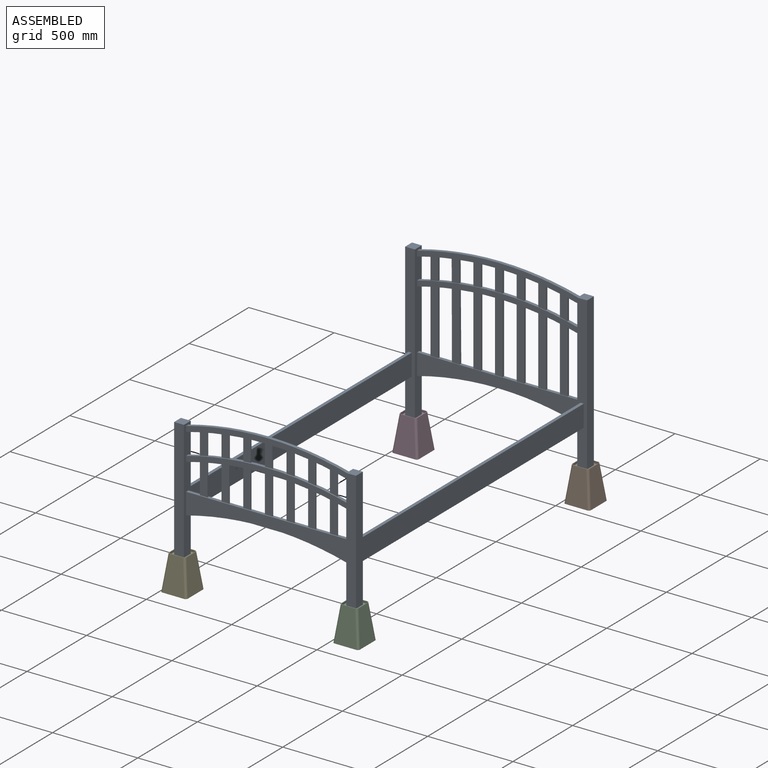
[diagram: assembled view]
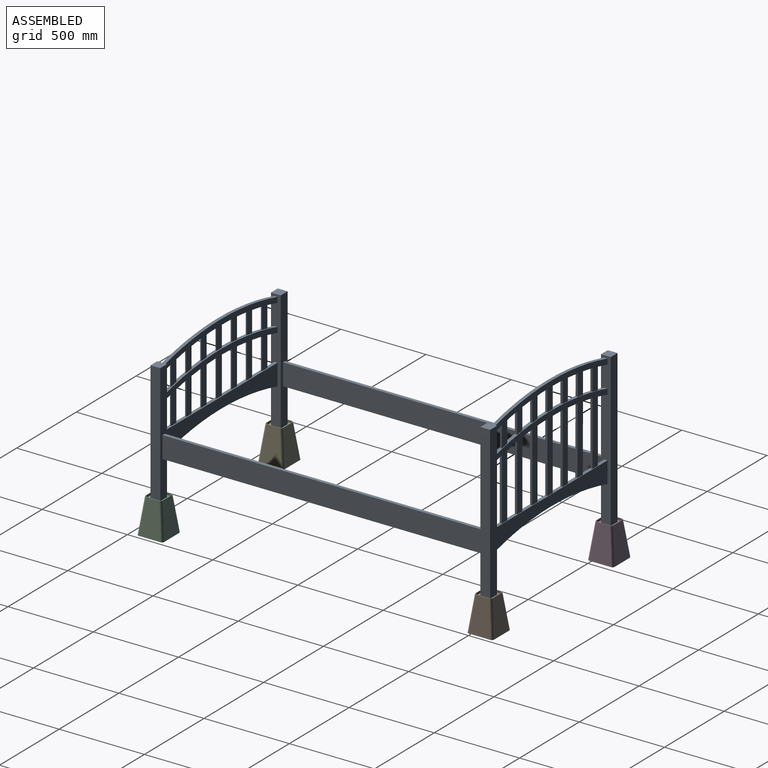
[diagram: assembled view, second angle]
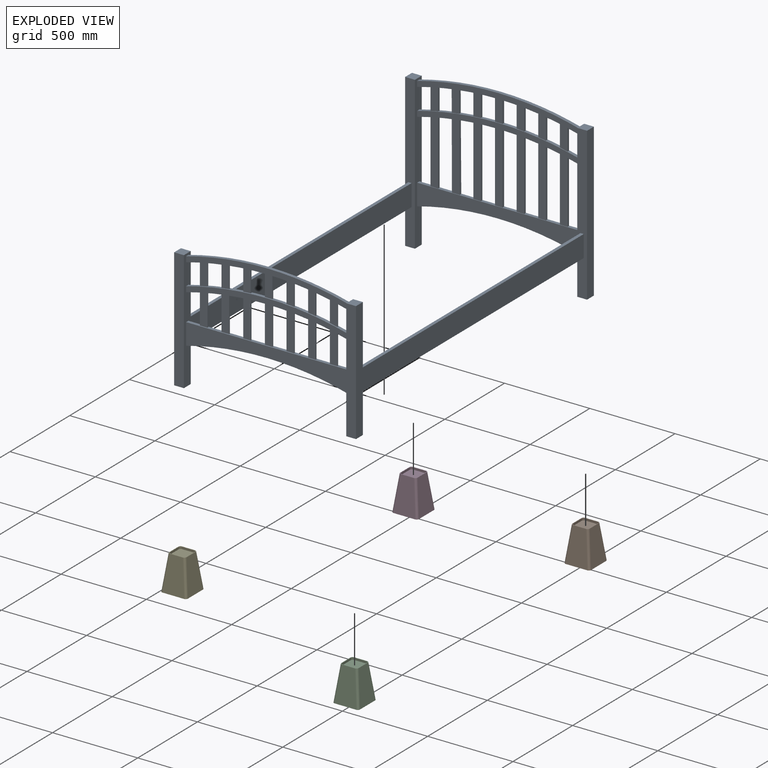
[diagram: exploded view]
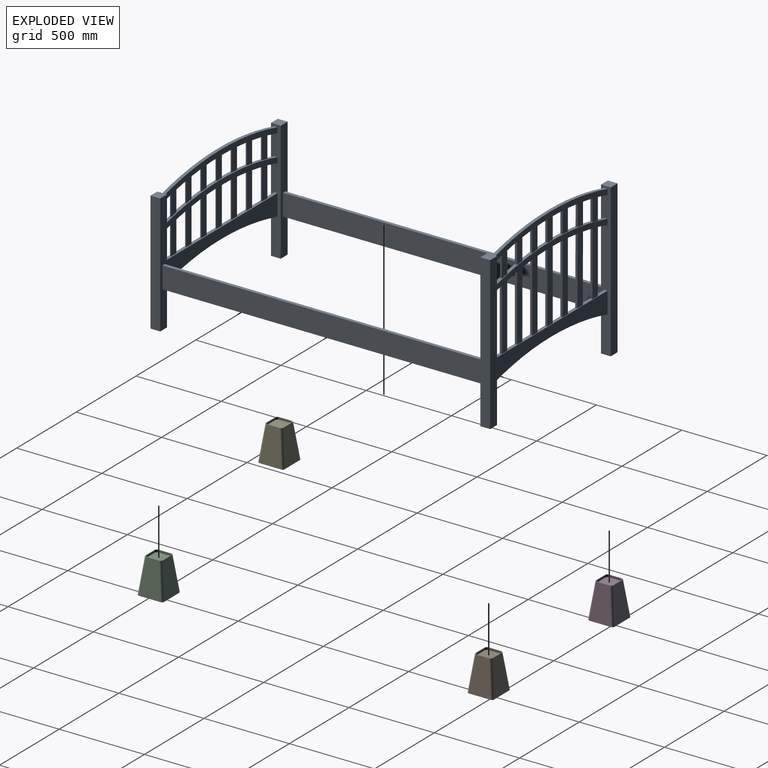
[diagram: exploded view, second angle]
ASSEMBLY  parts=5 mates=4
PART A: 168 faces, bbox 1066.8x1992.3x945.3 mm
  f0: plane 895.35x57.15mm, normal (0,-1,0), area 48749.9mm2, adj f85,f86,f87,f88,f164,f165,f166,f167
  f1: plane 704.85x57.15mm, normal (0,1,0), area 37862.8mm2, adj f3,f4,f5,f6,f164,f165,f166,f167
  f2: plane 704.85x57.15mm, normal (0,1,0), area 37862.8mm2, adj f8,f9,f10,f11,f81,f82,f83,f84
  f3: plane 704.85x57.15mm, normal (1,0,0), area 36685.6mm2, adj f1,f4,f6,f7,f13,f14,f15,f16
  f4: plane 57.15x57.15mm, normal (0,0,1), area 3266.1mm2, adj f1,f3,f5,f7
  f5: plane 704.85x57.15mm, normal (-1,0,0), area 40282.2mm2, adj f1,f4,f6,f7
  f6: plane 57.15x57.15mm, normal (0,0,-1), area 3266.1mm2, adj f1,f3,f5,f7
  f7: plane 704.85x57.15mm, normal (0,-1,0), area 40282.2mm2, adj f3,f4,f5,f6
  f8: plane 704.85x57.15mm, normal (-1,0,0), area 36653.2mm2, adj f2,f9,f11,f12,f13,f14,f15,f16
  f9: plane 57.15x57.15mm, normal (0,0,-1), area 3266.1mm2, adj f2,f8,f10,f12
  f10: plane 704.85x57.15mm, normal (1,0,0), area 40282.2mm2, adj f2,f9,f11,f12
  f11: plane 57.15x57.15mm, normal (0,0,1), area 3266.1mm2, adj f2,f8,f10,f12
  f12: plane 704.85x57.15mm, normal (0,-1,0), area 40282.2mm2, adj f8,f9,f10,f11
  f13: cylinder r=1841.58mm len=952.5mm, axis (0,1,0), area 16358.6mm2, adj f3,f8,f15,f16,f53,f54,f55,f56
  f14: cylinder r=1841.58mm len=952.5mm, axis (0,1,0), area 16358.6mm2, adj f3,f8,f15,f16,f21,f22,f23,f24
  f15: plane 952.5x94.4mm, normal (0,-1,0), area 30241.9mm2, adj f3,f8,f13,f14
  f16: plane 952.5x94.4mm, normal (0,1,0), area 30241.9mm2, adj f3,f8,f13,f14
  f17: cylinder r=1841.58mm len=952.5mm, axis (0,1,0), area 16358.6mm2, adj f3,f8,f19,f20,f21,f22,f23,f24
  f18: cylinder r=1841.58mm len=952.5mm, axis (0,1,0), area 18353.7mm2, adj f3,f8,f19,f20
  f19: plane 952.5x94.4mm, normal (0,-1,0), area 30241.9mm2, adj f3,f8,f17,f18
  f20: plane 952.5x94.4mm, normal (0,1,0), area 30241.9mm2, adj f3,f8,f17,f18
  f21: plane 127x6.35mm, normal (1,0,0), area 806.5mm2, adj f14,f17,f23,f24
  f22: plane 127x6.35mm, normal (-1,0,0), area 806.4mm2, adj f14,f17,f23,f24
  f23: plane 136.48x44.45mm, normal (0,-1,0), area 5645.1mm2, adj f14,f17,f21,f22
  f24: plane 136.48x44.45mm, normal (0,1,0), area 5645.1mm2, adj f14,f17,f21,f22
  f25: plane 127x6.35mm, normal (1,0,0), area 806.5mm2, adj f14,f17,f27,f28
  f26: plane 127x6.35mm, normal (-1,0,0), area 806.5mm2, adj f14,f17,f27,f28
  f27: plane 133.27x44.45mm, normal (0,-1,0), area 5645.2mm2, adj f14,f17,f25,f26
  f28: plane 133.27x44.45mm, normal (0,1,0), area 5645.2mm2, adj f14,f17,f25,f26
  f29: plane 127x6.35mm, normal (1,0,0), area 806.5mm2, adj f14,f17,f31,f32
  f30: plane 127x6.35mm, normal (-1,0,0), area 806.5mm2, adj f14,f17,f31,f32
  f31: plane 130.15x44.45mm, normal (0,-1,0), area 5645.2mm2, adj f14,f17,f29,f30
  f32: plane 130.15x44.45mm, normal (0,1,0), area 5645.2mm2, adj f14,f17,f29,f30
  f33: plane 127x6.35mm, normal (1,0,0), area 806.5mm2, adj f14,f17,f35,f36
  f34: plane 127x6.35mm, normal (-1,0,0), area 806.4mm2, adj f14,f17,f35,f36
  f35: plane 127.18x44.45mm, normal (0,-1,0), area 5645.2mm2, adj f14,f17,f33,f34
  f36: plane 127.18x44.45mm, normal (0,1,0), area 5645.2mm2, adj f14,f17,f33,f34
  f37: plane 127x6.35mm, normal (1,0,0), area 806.5mm2, adj f14,f17,f39,f40
  f38: plane 127x6.35mm, normal (-1,0,0), area 806.5mm2, adj f14,f17,f39,f40
  f39: plane 130x44.45mm, normal (0,-1,0), area 5645.2mm2, adj f14,f17,f37,f38
  f40: plane 130x44.45mm, normal (0,1,0), area 5645.2mm2, adj f14,f17,f37,f38
  f41: plane 127x6.35mm, normal (1,0,0), area 806.5mm2, adj f14,f17,f43,f44
  f42: plane 127x6.35mm, normal (-1,0,0), area 806.5mm2, adj f14,f17,f43,f44
  f43: plane 133.11x44.45mm, normal (0,-1,0), area 5645.2mm2, adj f14,f17,f41,f42
  f44: plane 133.11x44.45mm, normal (0,1,0), area 5645.2mm2, adj f14,f17,f41,f42
  f45: plane 127x6.35mm, normal (1,0,0), area 806.5mm2, adj f14,f17,f47,f48
  f46: plane 127x6.35mm, normal (-1,0,0), area 806.5mm2, adj f14,f17,f47,f48
  f47: plane 136.32x44.45mm, normal (0,-1,0), area 5645.1mm2, adj f14,f17,f45,f46
  f48: plane 136.32x44.45mm, normal (0,1,0), area 5645.1mm2, adj f14,f17,f45,f46
  f49: plane 952.5x19.05mm, normal (0,0,1), area 16169.3mm2, adj f3,f8,f51,f52,f53,f54,f55,f56
  f50: cylinder r=1841.58mm len=952.5mm, axis (0,1,0), area 18353.8mm2, adj f3,f8,f51,f52
  f51: plane 952.5x127mm, normal (0,-1,0), area 80236.9mm2, adj f3,f8,f49,f50
  f52: plane 952.5x127mm, normal (0,1,0), area 80236.9mm2, adj f3,f8,f49,f50
  f53: plane 185.48x6.35mm, normal (-1,0,0), area 1177.8mm2, adj f13,f49,f55,f56
  f54: plane 176x6.35mm, normal (1,0,0), area 1117.6mm2, adj f13,f49,f55,f56
  f55: plane 185.48x44.45mm, normal (0,-1,0), area 8038mm2, adj f13,f49,f53,f54
  f56: plane 185.48x44.45mm, normal (0,1,0), area 8038mm2, adj f13,f49,f53,f54
  f57: plane 206.35x6.35mm, normal (-1,0,0), area 1310.3mm2, adj f13,f49,f59,f60
  f58: plane 200.08x6.35mm, normal (1,0,0), area 1270.5mm2, adj f13,f49,f59,f60
  f59: plane 206.35x44.45mm, normal (0,-1,0), area 9036.9mm2, adj f13,f49,f57,f58
  f60: plane 206.35x44.45mm, normal (0,1,0), area 9036.9mm2, adj f13,f49,f57,f58
  f61: plane 218.23x6.35mm, normal (-1,0,0), area 1385.8mm2, adj f13,f49,f63,f64
  f62: plane 215.08x6.35mm, normal (1,0,0), area 1365.8mm2, adj f13,f49,f63,f64
  f63: plane 218.23x44.45mm, normal (0,-1,0), area 9634.3mm2, adj f13,f49,f61,f62
  f64: plane 218.23x44.45mm, normal (0,1,0), area 9634.3mm2, adj f13,f49,f61,f62
  f65: plane 221.3x6.35mm, normal (-1,0,0), area 1405.2mm2, adj f13,f49,f67,f68
  f66: plane 221.22x6.35mm, normal (1,0,0), area 1404.8mm2, adj f13,f49,f67,f68
  f67: plane 221.4x44.45mm, normal (0,-1,0), area 9839mm2, adj f13,f49,f65,f66
  f68: plane 221.4x44.45mm, normal (0,1,0), area 9839mm2, adj f13,f49,f65,f66
  f69: plane 215.6x6.35mm, normal (-1,0,0), area 1369mm2, adj f13,f49,f71,f72
  f70: plane 218.59x6.35mm, normal (1,0,0), area 1388.1mm2, adj f13,f49,f71,f72
  f71: plane 218.59x44.45mm, normal (0,-1,0), area 9653.8mm2, adj f13,f49,f69,f70
  f72: plane 218.59x44.45mm, normal (0,1,0), area 9653.8mm2, adj f13,f49,f69,f70
  f73: plane 201.04x6.35mm, normal (-1,0,0), area 1276.6mm2, adj f13,f49,f75,f76
  f74: plane 207.15x6.35mm, normal (1,0,0), area 1315.4mm2, adj f13,f49,f75,f76
  f75: plane 207.15x44.45mm, normal (0,-1,0), area 9076.2mm2, adj f13,f49,f73,f74
  f76: plane 207.15x44.45mm, normal (0,1,0), area 9076.2mm2, adj f13,f49,f73,f74
  f77: plane 177.42x6.35mm, normal (-1,0,0), area 1126.6mm2, adj f13,f49,f79,f80
  f78: plane 186.74x6.35mm, normal (1,0,0), area 1185.8mm2, adj f13,f49,f79,f80
  f79: plane 186.74x44.45mm, normal (0,-1,0), area 8097.7mm2, adj f13,f49,f77,f78
  f80: plane 186.74x44.45mm, normal (0,1,0), area 8097.7mm2, adj f13,f49,f77,f78
  f81: plane 1878x127mm, normal (-1,0,0), area 238506mm2, adj f2,f82,f84,f94
  f82: plane 1878x19.05mm, normal (0,0,-1), area 35775.9mm2, adj f2,f81,f83,f94
  f83: plane 1878x127mm, normal (1,0,0), area 238506mm2, adj f2,f82,f84,f94
  f84: plane 1878x19.05mm, normal (0,0,1), area 35775.9mm2, adj f2,f81,f83,f94
  f85: plane 895.35x57.15mm, normal (1,0,0), area 47572.7mm2, adj f0,f86,f88,f89,f96,f97,f98,f99
  f86: plane 57.15x57.15mm, normal (0,0,1), area 3266.1mm2, adj f0,f85,f87,f89
  f87: plane 895.35x57.15mm, normal (-1,0,0), area 51169.3mm2, adj f0,f86,f88,f89
  f88: plane 57.15x57.15mm, normal (0,0,-1), area 3266.1mm2, adj f0,f85,f87,f89
  f89: plane 895.35x57.15mm, normal (0,1,0), area 51169.3mm2, adj f85,f86,f87,f88
  f90: plane 895.35x57.15mm, normal (-1,0,0), area 47540.2mm2, adj f91,f93,f94,f95,f96,f97,f98,f99
  f91: plane 57.15x57.15mm, normal (0,0,-1), area 3266.1mm2, adj f90,f92,f94,f95
  f92: plane 895.35x57.15mm, normal (1,0,0), area 51169.3mm2, adj f91,f93,f94,f95
  f93: plane 57.15x57.15mm, normal (0,0,1), area 3266.1mm2, adj f90,f92,f94,f95
  f94: plane 895.35x57.15mm, normal (0,-1,0), area 48749.9mm2, adj f81,f82,f83,f84,f90,f91,f92,f93
  f95: plane 895.35x57.15mm, normal (0,1,0), area 51169.3mm2, adj f90,f91,f92,f93
  f96: cylinder r=1841.58mm len=952.5mm, axis (0,1,0), area 14364.4mm2, adj f85,f90,f98,f99,f136,f137,f138,f139
  f97: cylinder r=1841.58mm len=952.5mm, axis (0,1,0), area 14365.7mm2, adj f85,f90,f98,f99,f104,f105,f106,f107
  f98: plane 952.5x94.4mm, normal (0,-1,0), area 30241.9mm2, adj f85,f90,f96,f97
  f99: plane 952.5x94.4mm, normal (0,1,0), area 30241.9mm2, adj f85,f90,f96,f97
  f100: cylinder r=1841.58mm len=952.5mm, axis (0,1,0), area 14370.9mm2, adj f85,f90,f102,f103,f104,f105,f106,f107
  f101: cylinder r=1841.58mm len=952.5mm, axis (0,1,0), area 18353.7mm2, adj f85,f90,f102,f103
  f102: plane 952.5x94.4mm, normal (0,-1,0), area 30241.9mm2, adj f85,f90,f100,f101
  f103: plane 952.5x94.4mm, normal (0,1,0), area 30241.9mm2, adj f85,f90,f100,f101
  f104: plane 127x12.7mm, normal (1,0,0), area 1612.9mm2, adj f97,f100,f106,f107
  f105: plane 127x12.7mm, normal (-1,0,0), area 1612.9mm2, adj f97,f100,f106,f107
  f106: plane 136.4x44.45mm, normal (0,-1,0), area 5645.1mm2, adj f97,f100,f104,f105
  f107: plane 136.4x44.45mm, normal (0,1,0), area 5645.1mm2, adj f97,f100,f104,f105
  f108: plane 127x12.7mm, normal (1,0,0), area 1612.9mm2, adj f97,f100,f110,f111
  f109: plane 127x12.7mm, normal (-1,0,0), area 1612.9mm2, adj f97,f100,f110,f111
  f110: plane 133.19x44.45mm, normal (0,-1,0), area 5645.2mm2, adj f97,f100,f108,f109
  f111: plane 133.19x44.45mm, normal (0,1,0), area 5645.2mm2, adj f97,f100,f108,f109
  f112: plane 127x12.7mm, normal (1,0,0), area 1612.9mm2, adj f97,f100,f114,f115
  f113: plane 127x12.7mm, normal (-1,0,0), area 1612.9mm2, adj f97,f100,f114,f115
  f114: plane 130.07x44.45mm, normal (0,-1,0), area 5645.1mm2, adj f97,f100,f112,f113
  f115: plane 130.07x44.45mm, normal (0,1,0), area 5645.1mm2, adj f97,f100,f112,f113
  f116: plane 127x12.7mm, normal (1,0,0), area 1612.9mm2, adj f97,f100,f118,f119
  f117: plane 127x12.7mm, normal (-1,0,0), area 1612.9mm2, adj f97,f100,f118,f119
  f118: plane 127.13x44.45mm, normal (0,-1,0), area 5645.2mm2, adj f97,f100,f116,f117
  f119: plane 127.13x44.45mm, normal (0,1,0), area 5645.2mm2, adj f97,f100,f116,f117
  f120: plane 127x12.7mm, normal (1,0,0), area 1612.9mm2, adj f97,f100,f122,f123
  f121: plane 127x12.7mm, normal (-1,0,0), area 1612.9mm2, adj f97,f100,f122,f123
  f122: plane 130.07x44.45mm, normal (0,-1,0), area 5645.2mm2, adj f97,f100,f120,f121
  f123: plane 130.07x44.45mm, normal (0,1,0), area 5645.2mm2, adj f97,f100,f120,f121
  f124: plane 126.9x12.7mm, normal (1,0,0.01), area 1611.7mm2, adj f97,f100,f126,f127
  f125: plane 126.94x12.7mm, normal (-1,0,0), area 1612.2mm2, adj f97,f100,f126,f127
  f126: plane 133.06x44.67mm, normal (0,-1,0), area 5599.1mm2, adj f97,f100,f124,f125
  f127: plane 133.06x44.67mm, normal (0,1,0), area 5599.1mm2, adj f97,f100,f124,f125
  f128: plane 127x12.7mm, normal (1,0,0), area 1612.9mm2, adj f97,f100,f130,f131
  f129: plane 127x12.7mm, normal (-1,0,0), area 1612.9mm2, adj f97,f100,f130,f131
  f130: plane 136.32x44.45mm, normal (0,-1,0), area 5645.1mm2, adj f97,f100,f128,f129
  f131: plane 136.32x44.45mm, normal (0,1,0), area 5645.1mm2, adj f97,f100,f128,f129
  f132: plane 952.5x19.05mm, normal (0,0,1), area 14177.6mm2, adj f85,f90,f134,f135,f136,f137,f138,f139
  f133: cylinder r=1841.58mm len=952.5mm, axis (0,1,0), area 18353.8mm2, adj f85,f90,f134,f135
  f134: plane 952.5x127mm, normal (0,-1,0), area 80236.9mm2, adj f85,f90,f132,f133
  f135: plane 952.5x127mm, normal (0,1,0), area 80236.9mm2, adj f85,f90,f132,f133
  f136: plane 377.24x12.7mm, normal (1,0,0), area 4790.9mm2, adj f96,f132,f138,f139
  f137: plane 367.92x12.7mm, normal (-1,0,0), area 4672.6mm2, adj f96,f132,f138,f139
  f138: plane 377.24x44.45mm, normal (0,-1,0), area 16565.4mm2, adj f96,f132,f136,f137
  f139: plane 377.24x44.45mm, normal (0,1,0), area 16565.4mm2, adj f96,f132,f136,f137
  f140: plane 391.14x12.7mm, normal (-1,0,0), area 4967.4mm2, adj f96,f132,f142,f143
  f141: plane 397.31x12.7mm, normal (1,0,0.01), area 5045.9mm2, adj f96,f132,f142,f143
  f142: plane 397.31x46.87mm, normal (0,-1,0), area 17769mm2, adj f96,f132,f140,f141
  f143: plane 397.31x46.87mm, normal (0,1,0), area 17769mm2, adj f96,f132,f140,f141
  f144: plane 405.84x12.7mm, normal (-1,0,0), area 5154.2mm2, adj f96,f132,f146,f147
  f145: plane 408.91x12.7mm, normal (1,0,0), area 5193.2mm2, adj f96,f132,f146,f147
  f146: plane 408.91x44.45mm, normal (0,-1,0), area 18111.9mm2, adj f96,f132,f144,f145
  f147: plane 408.91x44.45mm, normal (0,1,0), area 18111.9mm2, adj f96,f132,f144,f145
  f148: plane 411.76x12.7mm, normal (-1,0,0), area 5229.4mm2, adj f96,f132,f150,f151
  f149: plane 411.76x12.7mm, normal (1,0,0), area 5229.4mm2, adj f96,f132,f150,f151
  f150: plane 411.9x44.45mm, normal (0,-1,0), area 18306.8mm2, adj f96,f132,f148,f149
  f151: plane 411.9x44.45mm, normal (0,1,0), area 18306.8mm2, adj f96,f132,f148,f149
  f152: plane 408.91x12.7mm, normal (-1,0,0), area 5193.2mm2, adj f96,f132,f154,f155
  f153: plane 405.84x12.7mm, normal (1,0,0), area 5154.2mm2, adj f96,f132,f154,f155
  f154: plane 408.91x44.45mm, normal (0,-1,0), area 18111.9mm2, adj f96,f132,f152,f153
  f155: plane 408.91x44.45mm, normal (0,1,0), area 18111.9mm2, adj f96,f132,f152,f153
  f156: plane 397.25x12.7mm, normal (-1,0,0), area 5045.1mm2, adj f96,f132,f158,f159
  f157: plane 391.06x12.7mm, normal (1,0,0), area 4966.5mm2, adj f96,f132,f158,f159
  f158: plane 397.25x44.45mm, normal (0,-1,0), area 17524.4mm2, adj f96,f132,f156,f157
  f159: plane 397.25x44.45mm, normal (0,1,0), area 17524.4mm2, adj f96,f132,f156,f157
  f160: plane 376.61x12.7mm, normal (-1,0,0), area 4783mm2, adj f96,f132,f162,f163
  f161: plane 367.21x12.7mm, normal (1,0,0), area 4663.6mm2, adj f96,f132,f162,f163
  f162: plane 376.61x44.45mm, normal (0,-1,0), area 16535.7mm2, adj f96,f132,f160,f161
  f163: plane 376.61x44.45mm, normal (0,1,0), area 16535.7mm2, adj f96,f132,f160,f161
  f164: plane 1878x127mm, normal (-1,0,0), area 238506mm2, adj f0,f1,f165,f167
  f165: plane 1878x19.05mm, normal (0,0,-1), area 35775.9mm2, adj f0,f1,f164,f166
  f166: plane 1878x127mm, normal (1,0,0), area 238506mm2, adj f0,f1,f165,f167
  f167: plane 1878x19.05mm, normal (0,0,1), area 35775.9mm2, adj f0,f1,f164,f166
PART B: 19 faces, bbox 153x153x203.8 mm
  f0: plane 152.97x152.97mm, normal (0,0,-1), area 23087.1mm2, adj f2,f3,f4,f5,f6,f7,f8,f9
  f1: plane 102.02x102.02mm, normal (0,0,1), area 1249.8mm2, adj f2,f3,f4,f5,f6,f7,f8,f9
  f2: bspline ~203.2x140.65mm, area 4104.9mm2, adj f0,f1,f3,f9
  f3: plane 203.2x127mm, normal (-0.99,0,0.12), area 20805.8mm2, adj f0,f1,f2,f4
  f4: bspline ~203.2x140.65mm, area 4104.9mm2, adj f0,f1,f3,f5
  f5: plane 203.2x127mm, normal (0,-0.99,0.12), area 20805.8mm2, adj f0,f1,f4,f6
  f6: bspline ~203.2x140.65mm, area 4104.9mm2, adj f0,f1,f5,f7
  f7: plane 203.2x127mm, normal (0.99,0,0.12), area 20805.8mm2, adj f0,f1,f6,f8
  f8: bspline ~203.2x140.65mm, area 4104.9mm2, adj f0,f1,f7,f9
  f9: plane 203.2x127mm, normal (0,0.99,0.12), area 20805.8mm2, adj f0,f1,f2,f8
  f10: cylinder r=12.7mm len=12.7mm, axis (0,0,1), area 253.4mm2, adj f1,f11,f17,f18
  f11: plane 69.85x12.7mm, normal (0,1,0), area 887.1mm2, adj f1,f10,f12,f18
  f12: cylinder r=12.7mm len=12.7mm, axis (0,0,1), area 253.4mm2, adj f1,f11,f13,f18
  f13: plane 69.85x12.7mm, normal (-1,0,0), area 887.1mm2, adj f1,f12,f14,f18
  f14: cylinder r=12.7mm len=12.7mm, axis (0,0,1), area 253.4mm2, adj f1,f13,f15,f18
  f15: plane 69.85x12.7mm, normal (0,-1,0), area 887.1mm2, adj f1,f14,f16,f18
  f16: cylinder r=12.7mm len=12.7mm, axis (0,0,1), area 253.4mm2, adj f1,f15,f17,f18
  f17: plane 69.85x12.7mm, normal (1,0,0), area 887.1mm2, adj f1,f10,f16,f18
  f18: plane 95.25x95.25mm, normal (0,0,1), area 8934.1mm2, adj f10,f11,f12,f13,f14,f15,f16,f17
PART C: same geometry as B
PART D: same geometry as B
PART E: same geometry as B
PLACE A t=(-1472.98,56.35,1364.3)mm fixed
PLACE B t=(-968.15,1991.5,821.37)mm
PLACE C t=(-968.15,56.35,821.37)mm
PLACE D t=(-1977.8,1991.5,821.37)mm
PLACE E t=(-1977.8,56.35,821.37)mm
MATE fastened A.f9 <-> C.f18  axis (0,0,-1) through (-968.15,56.35,1011.87)mm
MATE fastened E.f18 <-> A.f6  axis (0,0,1) through (-1977.8,56.35,1011.87)mm
MATE fastened A.f88 <-> D.f18  axis (0,0,-1) through (-1977.8,1991.5,1011.87)mm
MATE fastened B.f18 <-> A.f91  axis (0,0,1) through (-968.15,1991.5,1011.87)mm
